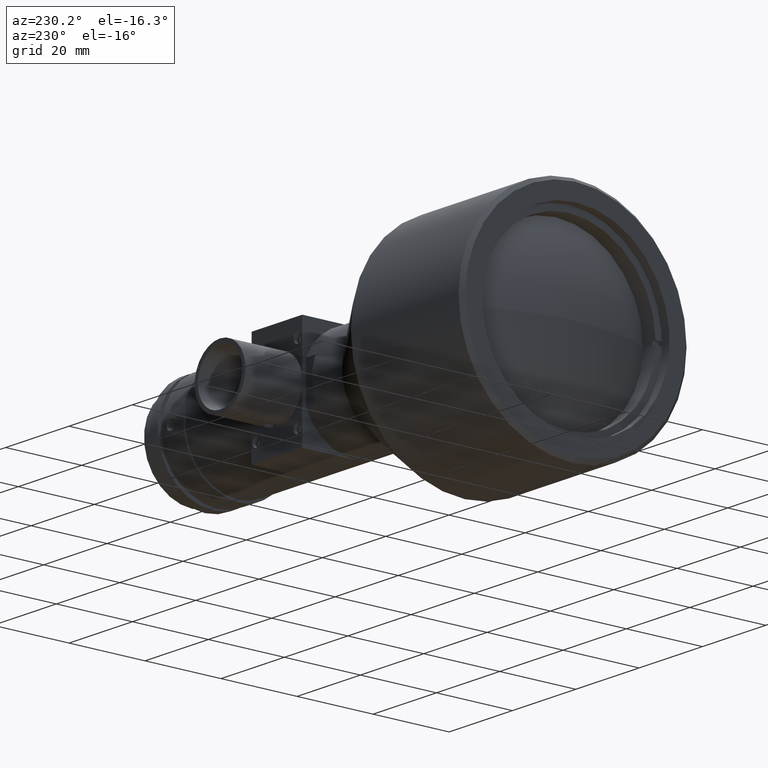
[diagram: clean part render]
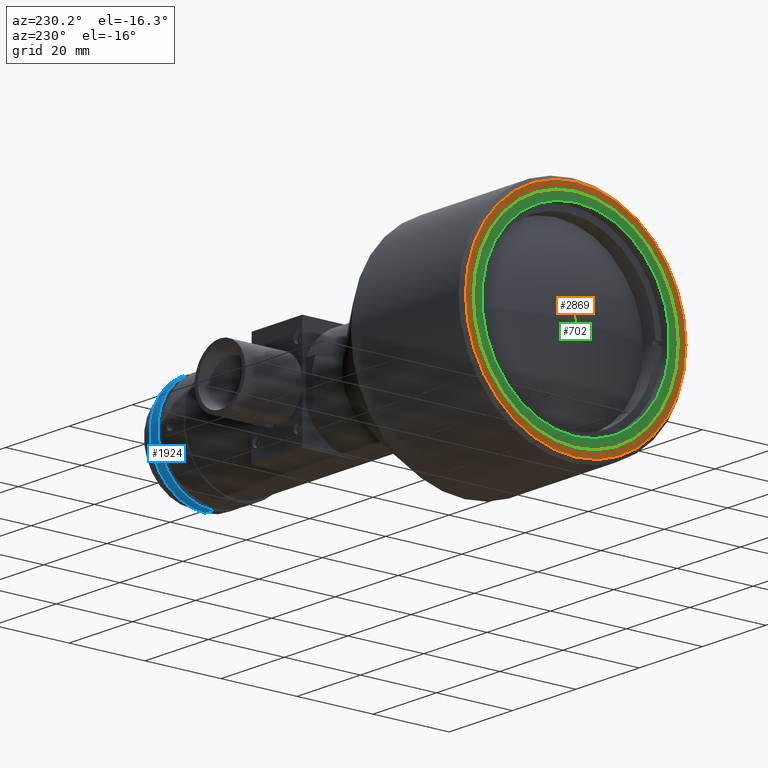
[diagram: same view with three faces highlighted in distinct colors, each labeled with its STEP entity id]
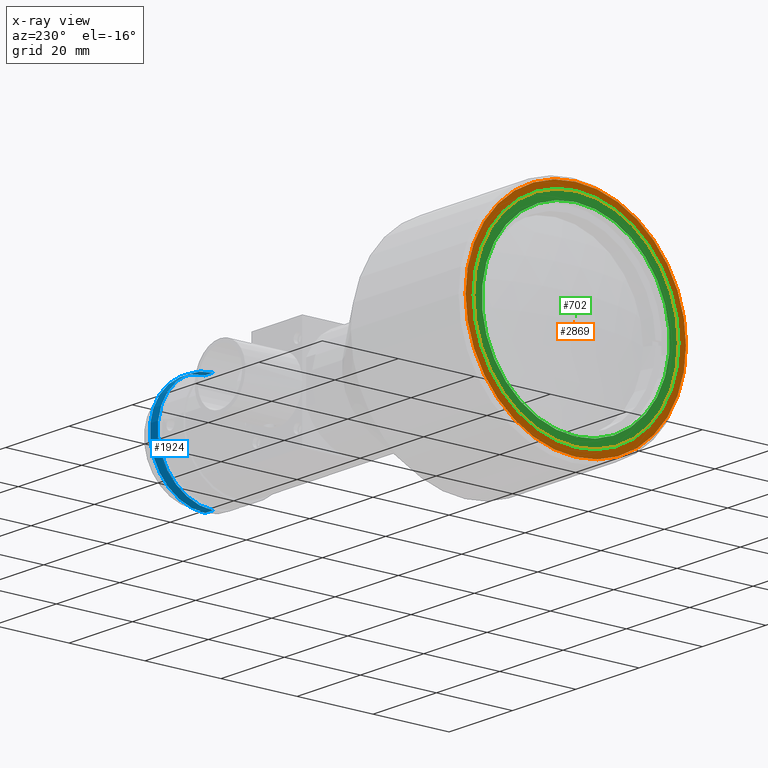
[diagram: x-ray of the same camera — body ghosted, the three highlighted faces saturated]
A machine part, auxiliary view with three faces highlighted in distinct colors.
The next image is the same camera in x-ray (body ghosted, the three faces saturated) — at least one of them is partly hidden behind the body in this view.
Their STEP definitions:

[orange] entity #2869 — the highlighted planar face has unit normal (1, 0, 0).
#161 = CARTESIAN_POINT ( 'NONE',  ( 0.0000000000000000000, 0.0000000000000000000, 0.0000000000000000000 ) ) ;
#175 = EDGE_CURVE ( 'NONE', #1981, #3850, #1003, .T. ) ;
#363 = CARTESIAN_POINT ( 'NONE',  ( 0.0000000000000000000, 30.00000000000000000, 0.0000000000000000000 ) ) ;
#678 = PLANE ( 'NONE',  #3720 ) ;
#692 = CARTESIAN_POINT ( 'NONE',  ( 0.0000000000000000000, 3.306546357697853700E-015, -27.00000000000000000 ) ) ;
#749 = ORIENTED_EDGE ( 'NONE', *, *, #3011, .T. ) ;
#768 = DIRECTION ( 'NONE',  ( -1.000000000000000000, -0.0000000000000000000, -0.0000000000000000000 ) ) ;
#919 = EDGE_LOOP ( 'NONE', ( #1529, #1839 ) ) ;
#990 = DIRECTION ( 'NONE',  ( 1.000000000000000000, 0.0000000000000000000, 0.0000000000000000000 ) ) ;
#995 = VERTEX_POINT ( 'NONE', #1664 ) ;
#1003 = CIRCLE ( 'NONE', #2286, 27.00000000000000000 ) ;
#1190 = AXIS2_PLACEMENT_3D ( 'NONE', #2621, #768, #2920 ) ;
#1231 = CIRCLE ( 'NONE', #1190, 29.00000000000001400 ) ;
#1242 = AXIS2_PLACEMENT_3D ( 'NONE', #1558, #1625, #1528 ) ;
#1528 = DIRECTION ( 'NONE',  ( 0.0000000000000000000, 0.0000000000000000000, -1.000000000000000000 ) ) ;
#1529 = ORIENTED_EDGE ( 'NONE', *, *, #175, .F. ) ;
#1541 = EDGE_CURVE ( 'NONE', #2712, #995, #2881, .T. ) ;
#1558 = CARTESIAN_POINT ( 'NONE',  ( 0.0000000000000000000, 0.0000000000000000000, 0.0000000000000000000 ) ) ;
#1603 = FACE_BOUND ( 'NONE', #919, .T. ) ;
#1623 = EDGE_CURVE ( 'NONE', #3850, #1981, #1665, .T. ) ;
#1625 = DIRECTION ( 'NONE',  ( -1.000000000000000000, -0.0000000000000000000, -0.0000000000000000000 ) ) ;
#1664 = CARTESIAN_POINT ( 'NONE',  ( 0.0000000000000000000, 0.0000000000000000000, -29.00000000000001400 ) ) ;
#1665 = CIRCLE ( 'NONE', #3093, 27.00000000000000000 ) ;
#1813 = CARTESIAN_POINT ( 'NONE',  ( 0.0000000000000000000, 3.612708057484693200E-015, 29.00000000000001400 ) ) ;
#1839 = ORIENTED_EDGE ( 'NONE', *, *, #1623, .F. ) ;
#1889 = DIRECTION ( 'NONE',  ( 0.0000000000000000000, 0.0000000000000000000, 1.000000000000000000 ) ) ;
#1981 = VERTEX_POINT ( 'NONE', #2314 ) ;
#2205 = CARTESIAN_POINT ( 'NONE',  ( 0.0000000000000000000, 0.0000000000000000000, 0.0000000000000000000 ) ) ;
#2286 = AXIS2_PLACEMENT_3D ( 'NONE', #161, #3809, #3818 ) ;
#2314 = CARTESIAN_POINT ( 'NONE',  ( 0.0000000000000000000, 0.0000000000000000000, 27.00000000000000000 ) ) ;
#2621 = CARTESIAN_POINT ( 'NONE',  ( 0.0000000000000000000, 0.0000000000000000000, 0.0000000000000000000 ) ) ;
#2709 = ORIENTED_EDGE ( 'NONE', *, *, #1541, .T. ) ;
#2712 = VERTEX_POINT ( 'NONE', #1813 ) ;
#2869 = ADVANCED_FACE ( 'NONE', ( #3145, #1603 ), #678, .F. ) ;
#2881 = CIRCLE ( 'NONE', #1242, 29.00000000000001400 ) ;
#2920 = DIRECTION ( 'NONE',  ( 0.0000000000000000000, 0.0000000000000000000, -1.000000000000000000 ) ) ;
#3011 = EDGE_CURVE ( 'NONE', #995, #2712, #1231, .T. ) ;
#3093 = AXIS2_PLACEMENT_3D ( 'NONE', #2205, #3442, #1889 ) ;
#3126 = DIRECTION ( 'NONE',  ( 0.0000000000000000000, 0.0000000000000000000, -1.000000000000000000 ) ) ;
#3145 = FACE_OUTER_BOUND ( 'NONE', #3624, .T. ) ;
#3442 = DIRECTION ( 'NONE',  ( -1.000000000000000000, -0.0000000000000000000, -0.0000000000000000000 ) ) ;
#3624 = EDGE_LOOP ( 'NONE', ( #749, #2709 ) ) ;
#3720 = AXIS2_PLACEMENT_3D ( 'NONE', #363, #990, #3126 ) ;
#3809 = DIRECTION ( 'NONE',  ( -1.000000000000000000, -0.0000000000000000000, -0.0000000000000000000 ) ) ;
#3818 = DIRECTION ( 'NONE',  ( 0.0000000000000000000, 0.0000000000000000000, 1.000000000000000000 ) ) ;
#3850 = VERTEX_POINT ( 'NONE', #692 ) ;

[blue] entity #1924 — the highlighted cylindrical surface (partial cylindrical patch) has radius 14.5 mm, axis along (-1, -0, -0).
#3 = EDGE_CURVE ( 'NONE', #472, #3053, #2083, .T. ) ;
#90 = CARTESIAN_POINT ( 'NONE',  ( 74.34930454845090300, 1.775737858763662000E-015, -14.50000000000000000 ) ) ;
#100 = LINE ( 'NONE', #3343, #2965 ) ;
#231 = CARTESIAN_POINT ( 'NONE',  ( 117.0899999999999900, 0.0000000000000000000, 0.0000000000000000000 ) ) ;
#385 = LINE ( 'NONE', #90, #2015 ) ;
#422 = DIRECTION ( 'NONE',  ( -1.000000000000000000, -0.0000000000000000000, -0.0000000000000000000 ) ) ;
#472 = VERTEX_POINT ( 'NONE', #815 ) ;
#478 = CIRCLE ( 'NONE', #1987, 14.50000000000000000 ) ;
#507 = DIRECTION ( 'NONE',  ( -1.000000000000000000, -0.0000000000000000000, -0.0000000000000000000 ) ) ;
#815 = CARTESIAN_POINT ( 'NONE',  ( 114.5900000000000000, 0.0000000000000000000, 14.50000000000000000 ) ) ;
#856 = EDGE_CURVE ( 'NONE', #1286, #472, #100, .T. ) ;
#982 = CARTESIAN_POINT ( 'NONE',  ( 117.0899999999999900, 0.0000000000000000000, 14.50000000000000000 ) ) ;
#1012 = DIRECTION ( 'NONE',  ( 0.0000000000000000000, 0.0000000000000000000, 1.000000000000000000 ) ) ;
#1270 = DIRECTION ( 'NONE',  ( -1.000000000000000000, -0.0000000000000000000, -0.0000000000000000000 ) ) ;
#1281 = EDGE_CURVE ( 'NONE', #2136, #3053, #385, .T. ) ;
#1286 = VERTEX_POINT ( 'NONE', #982 ) ;
#1482 = AXIS2_PLACEMENT_3D ( 'NONE', #3759, #422, #2328 ) ;
#1573 = CARTESIAN_POINT ( 'NONE',  ( 114.5900000000000000, 0.0000000000000000000, 0.0000000000000000000 ) ) ;
#1699 = CARTESIAN_POINT ( 'NONE',  ( 114.5900000000000000, 1.775737858763662000E-015, -14.50000000000000000 ) ) ;
#1769 = EDGE_CURVE ( 'NONE', #1286, #2136, #478, .T. ) ;
#1805 = DIRECTION ( 'NONE',  ( -1.000000000000000000, -0.0000000000000000000, -0.0000000000000000000 ) ) ;
#1924 = ADVANCED_FACE ( 'NONE', ( #3726 ), #3634, .T. ) ;
#1987 = AXIS2_PLACEMENT_3D ( 'NONE', #231, #1270, #1012 ) ;
#2015 = VECTOR ( 'NONE', #3122, 1000.000000000000000 ) ;
#2083 = CIRCLE ( 'NONE', #3580, 14.50000000000000000 ) ;
#2136 = VERTEX_POINT ( 'NONE', #3086 ) ;
#2272 = DIRECTION ( 'NONE',  ( 0.0000000000000000000, 0.0000000000000000000, 1.000000000000000000 ) ) ;
#2328 = DIRECTION ( 'NONE',  ( 0.0000000000000000000, 0.0000000000000000000, 1.000000000000000000 ) ) ;
#2965 = VECTOR ( 'NONE', #507, 1000.000000000000000 ) ;
#3053 = VERTEX_POINT ( 'NONE', #1699 ) ;
#3086 = CARTESIAN_POINT ( 'NONE',  ( 117.0899999999999900, 1.775737858763662000E-015, -14.50000000000000000 ) ) ;
#3122 = DIRECTION ( 'NONE',  ( -1.000000000000000000, -0.0000000000000000000, -0.0000000000000000000 ) ) ;
#3263 = ORIENTED_EDGE ( 'NONE', *, *, #3, .F. ) ;
#3267 = ORIENTED_EDGE ( 'NONE', *, *, #1769, .T. ) ;
#3304 = EDGE_LOOP ( 'NONE', ( #3267, #3502, #3263, #3367 ) ) ;
#3343 = CARTESIAN_POINT ( 'NONE',  ( 74.34930454845090300, 0.0000000000000000000, 14.50000000000000000 ) ) ;
#3367 = ORIENTED_EDGE ( 'NONE', *, *, #856, .F. ) ;
#3502 = ORIENTED_EDGE ( 'NONE', *, *, #1281, .T. ) ;
#3580 = AXIS2_PLACEMENT_3D ( 'NONE', #1573, #1805, #2272 ) ;
#3634 = CYLINDRICAL_SURFACE ( 'NONE', #1482, 14.50000000000000000 ) ;
#3726 = FACE_OUTER_BOUND ( 'NONE', #3304, .T. ) ;
#3759 = CARTESIAN_POINT ( 'NONE',  ( 74.34930454845090300, 0.0000000000000000000, 0.0000000000000000000 ) ) ;

[green] entity #702 — the highlighted planar face has unit normal (1, 0, 0).
#154 = AXIS2_PLACEMENT_3D ( 'NONE', #2248, #3446, #1198 ) ;
#158 = AXIS2_PLACEMENT_3D ( 'NONE', #3899, #1774, #261 ) ;
#193 = FACE_OUTER_BOUND ( 'NONE', #704, .T. ) ;
#261 = DIRECTION ( 'NONE',  ( 0.0000000000000000000, 0.0000000000000000000, 1.000000000000000000 ) ) ;
#297 = EDGE_CURVE ( 'NONE', #494, #1525, #3148, .T. ) ;
#379 = AXIS2_PLACEMENT_3D ( 'NONE', #3476, #1643, #3776 ) ;
#410 = EDGE_LOOP ( 'NONE', ( #1485, #2474 ) ) ;
#494 = VERTEX_POINT ( 'NONE', #927 ) ;
#620 = CARTESIAN_POINT ( 'NONE',  ( 0.0000000000000000000, 0.0000000000000000000, 0.0000000000000000000 ) ) ;
#634 = ORIENTED_EDGE ( 'NONE', *, *, #2942, .T. ) ;
#702 = ADVANCED_FACE ( 'NONE', ( #1706, #193 ), #844, .F. ) ;
#704 = EDGE_LOOP ( 'NONE', ( #2739, #634 ) ) ;
#832 = AXIS2_PLACEMENT_3D ( 'NONE', #620, #2650, #2501 ) ;
#844 = PLANE ( 'NONE',  #2917 ) ;
#927 = CARTESIAN_POINT ( 'NONE',  ( 0.0000000000000000000, 0.0000000000000000000, 24.69999999999999900 ) ) ;
#1123 = VERTEX_POINT ( 'NONE', #2780 ) ;
#1198 = DIRECTION ( 'NONE',  ( 0.0000000000000000000, 0.0000000000000000000, 1.000000000000000000 ) ) ;
#1387 = EDGE_CURVE ( 'NONE', #1525, #494, #1909, .T. ) ;
#1413 = CIRCLE ( 'NONE', #379, 27.00000000000000000 ) ;
#1485 = ORIENTED_EDGE ( 'NONE', *, *, #297, .F. ) ;
#1525 = VERTEX_POINT ( 'NONE', #1783 ) ;
#1643 = DIRECTION ( 'NONE',  ( -1.000000000000000000, -0.0000000000000000000, -0.0000000000000000000 ) ) ;
#1688 = EDGE_CURVE ( 'NONE', #1123, #3614, #3381, .T. ) ;
#1706 = FACE_BOUND ( 'NONE', #410, .T. ) ;
#1774 = DIRECTION ( 'NONE',  ( -1.000000000000000000, -0.0000000000000000000, -0.0000000000000000000 ) ) ;
#1783 = CARTESIAN_POINT ( 'NONE',  ( 0.0000000000000000000, 3.024877593893962600E-015, -24.69999999999999900 ) ) ;
#1909 = CIRCLE ( 'NONE', #832, 24.69999999999999900 ) ;
#2248 = CARTESIAN_POINT ( 'NONE',  ( 0.0000000000000000000, 0.0000000000000000000, 0.0000000000000000000 ) ) ;
#2268 = DIRECTION ( 'NONE',  ( 1.000000000000000000, 0.0000000000000000000, 0.0000000000000000000 ) ) ;
#2474 = ORIENTED_EDGE ( 'NONE', *, *, #1387, .F. ) ;
#2501 = DIRECTION ( 'NONE',  ( 0.0000000000000000000, 0.0000000000000000000, 1.000000000000000000 ) ) ;
#2600 = DIRECTION ( 'NONE',  ( 0.0000000000000000000, 0.0000000000000000000, -1.000000000000000000 ) ) ;
#2650 = DIRECTION ( 'NONE',  ( -1.000000000000000000, -0.0000000000000000000, -0.0000000000000000000 ) ) ;
#2739 = ORIENTED_EDGE ( 'NONE', *, *, #1688, .T. ) ;
#2780 = CARTESIAN_POINT ( 'NONE',  ( 0.0000000000000000000, 0.0000000000000000000, 27.00000000000000000 ) ) ;
#2917 = AXIS2_PLACEMENT_3D ( 'NONE', #3019, #2268, #2600 ) ;
#2942 = EDGE_CURVE ( 'NONE', #3614, #1123, #1413, .T. ) ;
#3019 = CARTESIAN_POINT ( 'NONE',  ( 1.714505518806294600E-016, 27.00000000000000000, 0.0000000000000000000 ) ) ;
#3148 = CIRCLE ( 'NONE', #158, 24.69999999999999900 ) ;
#3245 = CARTESIAN_POINT ( 'NONE',  ( 0.0000000000000000000, 3.306546357697853700E-015, -27.00000000000000000 ) ) ;
#3381 = CIRCLE ( 'NONE', #154, 27.00000000000000000 ) ;
#3446 = DIRECTION ( 'NONE',  ( -1.000000000000000000, -0.0000000000000000000, -0.0000000000000000000 ) ) ;
#3476 = CARTESIAN_POINT ( 'NONE',  ( 0.0000000000000000000, 0.0000000000000000000, 0.0000000000000000000 ) ) ;
#3614 = VERTEX_POINT ( 'NONE', #3245 ) ;
#3776 = DIRECTION ( 'NONE',  ( 0.0000000000000000000, 0.0000000000000000000, 1.000000000000000000 ) ) ;
#3899 = CARTESIAN_POINT ( 'NONE',  ( 0.0000000000000000000, 0.0000000000000000000, 0.0000000000000000000 ) ) ;